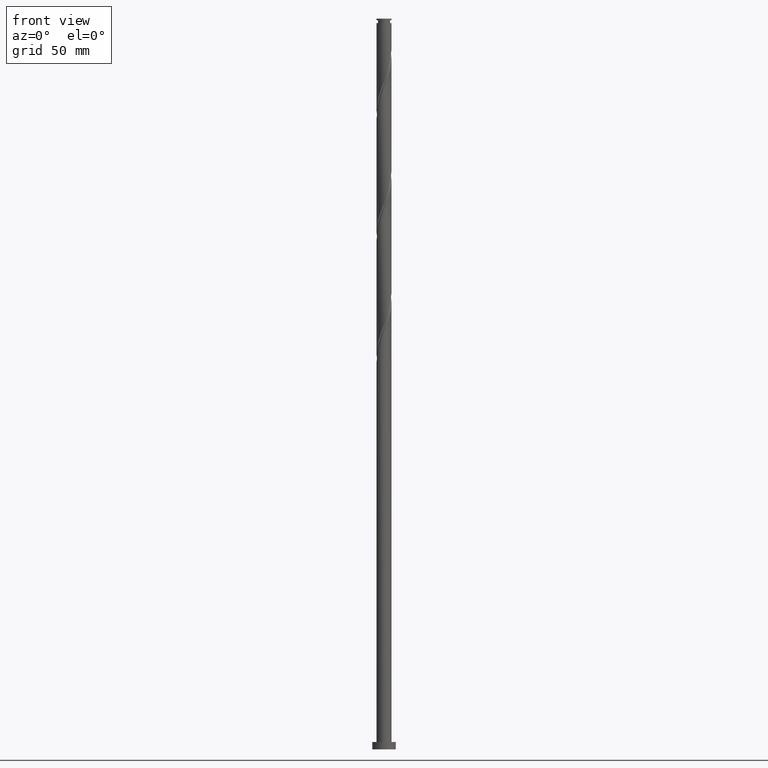
[diagram: clean part render]
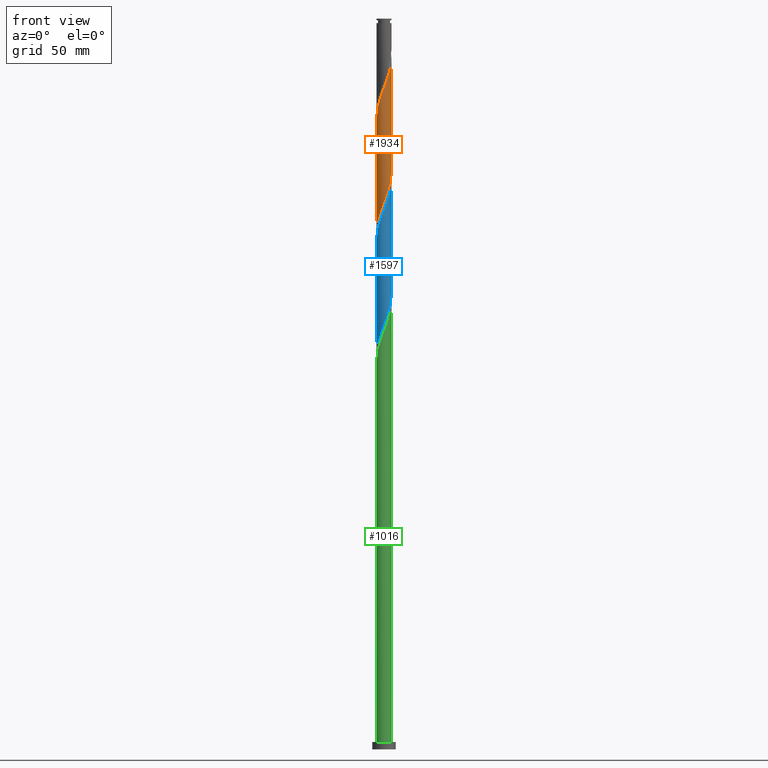
[diagram: same view with three faces highlighted in distinct colors, each labeled with its STEP entity id]
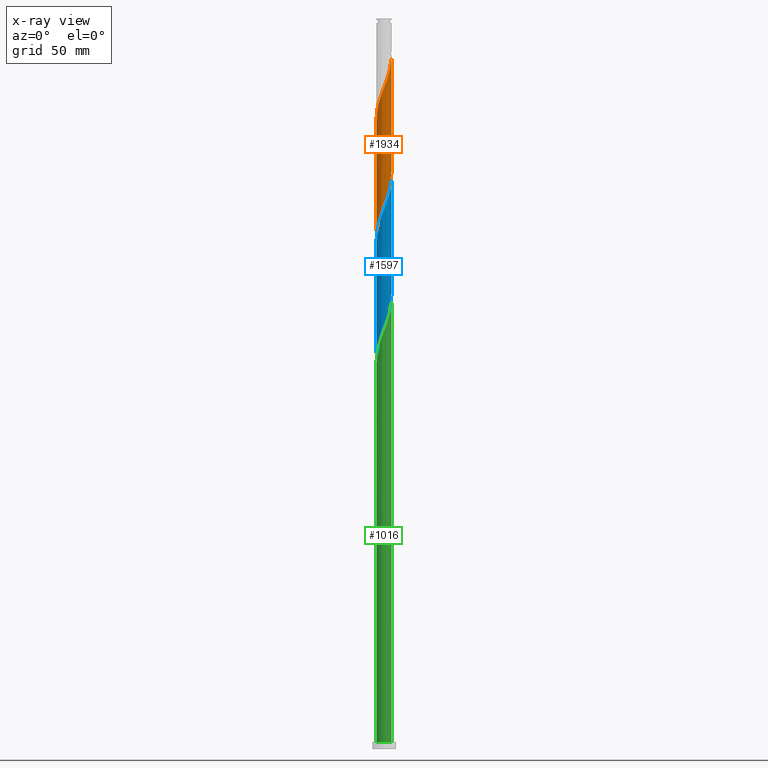
[diagram: x-ray of the same camera — body ghosted, the three highlighted faces saturated]
A machine part, front view with three faces highlighted in distinct colors.
The next image is the same camera in x-ray (body ghosted, the three faces saturated) — at least one of them is partly hidden behind the body in this view.
Their STEP definitions:

[orange] entity #1934 — the highlighted cylindrical surface (edge-blend (fillet) strip) has radius 5.1 mm, axis along (-0, -0, -1).
#30 = CARTESIAN_POINT ( 'NONE',  ( 3.235247230719697331, -3.974353636958184222, 383.6233842820044515 ) ) ;
#49 = VECTOR ( 'NONE', #1482, 1000.000000000000000 ) ;
#53 = CARTESIAN_POINT ( 'NONE',  ( -3.620587879580458246, -3.591844011957518124, 364.0921342820045083 ) ) ;
#57 = CARTESIAN_POINT ( 'NONE',  ( 4.998000000000001108, -1.014887185848757811, 392.7379676153379364 ) ) ;
#58 = VERTEX_POINT ( 'NONE', #354 ) ;
#65 = CARTESIAN_POINT ( 'NONE',  ( -5.005930415235359199, -0.9750182961470735821, 356.2796342820045083 ) ) ;
#82 = CARTESIAN_POINT ( 'NONE',  ( 0.000000000000000000, 0.000000000000000000, 500.0000000000000000 ) ) ;
#84 = VECTOR ( 'NONE', #88, 1000.000000000000000 ) ;
#88 = DIRECTION ( 'NONE',  ( -0.000000000000000000, -0.000000000000000000, -1.000000000000000000 ) ) ;
#106 = CYLINDRICAL_SURFACE ( 'NONE', #1374, 5.100000000000001421 ) ;
#108 = EDGE_CURVE ( 'NONE', #1903, #2017, #1609, .T. ) ;
#118 = DIRECTION ( 'NONE',  ( -1.000000000000000000, 0.000000000000000000, 0.000000000000000000 ) ) ;
#158 = CARTESIAN_POINT ( 'NONE',  ( 4.509897990299585047, -2.433748465345991541, 388.8317176153378227 ) ) ;
#165 = CARTESIAN_POINT ( 'NONE',  ( 3.266822122202741152, -3.948440793195344689, 461.7483842820044515 ) ) ;
#174 = CARTESIAN_POINT ( 'NONE',  ( -5.100000000000001421, 0.000000000000000000, 500.0000000000000000 ) ) ;
#175 = CARTESIAN_POINT ( 'NONE',  ( 2.433748465345992873, -4.509897990299594817, 459.1442176153377659 ) ) ;
#189 = CARTESIAN_POINT ( 'NONE',  ( -2.850285293774363460, -4.229169391747460871, 366.6963009486711940 ) ) ;
#211 = CARTESIAN_POINT ( 'NONE',  ( -2.433748465345991541, -4.509897990299585047, 367.9983842820045083 ) ) ;
#220 = CARTESIAN_POINT ( 'NONE',  ( 0.4819771844422291451, -5.101961335521796315, 375.8108842820043947 ) ) ;
#246 = CARTESIAN_POINT ( 'NONE',  ( -4.898042336816559761, -1.507147219827865925, 435.7067176153378796 ) ) ;
#268 = CARTESIAN_POINT ( 'NONE',  ( -3.591844011957525229, -3.620587879580463131, 442.2171342820044515 ) ) ;
#290 = CARTESIAN_POINT ( 'NONE',  ( 4.719526232618731498, -1.932892169683488426, 468.2588009486710234 ) ) ;
#301 = CARTESIAN_POINT ( 'NONE',  ( 3.620587879580463131, -3.591844011957526117, 463.0504676153378227 ) ) ;
#303 = EDGE_CURVE ( 'NONE', #1787, #2017, #954, .T. ) ;
#328 = CARTESIAN_POINT ( 'NONE',  ( 3.591844011957518124, -3.620587879580457802, 384.9254676153379364 ) ) ;
#354 = CARTESIAN_POINT ( 'NONE',  ( 5.100000000000011191, 4.827319550253835716E-16, 473.4144373040076061 ) ) ;
#368 = CARTESIAN_POINT ( 'NONE',  ( -1.932892169683487982, -4.719526232618731498, 447.4254676153377659 ) ) ;
#382 = CARTESIAN_POINT ( 'NONE',  ( 2.816486081117375306, -4.251753303623353020, 382.3213009486710234 ) ) ;
#466 = CARTESIAN_POINT ( 'NONE',  ( -5.100000000000001421, 2.809183127157574852E-13, 353.7281645933339291 ) ) ;
#496 = ORIENTED_EDGE ( 'NONE', *, *, #1148, .F. ) ;
#500 = CARTESIAN_POINT ( 'NONE',  ( 2.850285293774367013, -4.229169391747469753, 460.4463009486710803 ) ) ;
#520 = CARTESIAN_POINT ( 'NONE',  ( 1.932892169683482875, -4.719526232618723505, 379.7171342820043947 ) ) ;
#550 = CARTESIAN_POINT ( 'NONE',  ( -3.974353636958182445, -3.235247230719699107, 362.7900509486711940 ) ) ;
#579 = CARTESIAN_POINT ( 'NONE',  ( 1.507147219827865481, -4.898042336816559761, 456.5400509486710803 ) ) ;
#588 = CARTESIAN_POINT ( 'NONE',  ( -5.100000000000010303, -2.355881046919246659E-15, 431.7477706373409774 ) ) ;
#611 = CARTESIAN_POINT ( 'NONE',  ( -3.948440793195344689, -3.266822122202741152, 440.9150509486711940 ) ) ;
#655 = CARTESIAN_POINT ( 'NONE',  ( 5.005930415235366304, -0.9750182961470786891, 470.8629676153377090 ) ) ;
#665 = CARTESIAN_POINT ( 'NONE',  ( 4.909899494948929188, -1.468059407851920239, 469.5608842820044515 ) ) ;
#682 = CARTESIAN_POINT ( 'NONE',  ( 4.703970163558069295, -1.970447842586929843, 390.1338009486712508 ) ) ;
#688 = CARTESIAN_POINT ( 'NONE',  ( -1.970447842586929843, -4.703970163558069295, 369.3004676153378796 ) ) ;
#729 = CARTESIAN_POINT ( 'NONE',  ( -5.097957663183454002, -0.5226271518696490315, 433.1025509486710803 ) ) ;
#740 = CARTESIAN_POINT ( 'NONE',  ( -4.229169391747469753, -2.850285293774367013, 439.6129676153377090 ) ) ;
#786 = CARTESIAN_POINT ( 'NONE',  ( 3.974353636958187330, -3.235247230719706657, 464.3525509486711940 ) ) ;
#854 = CARTESIAN_POINT ( 'NONE',  ( 5.100000000000000533, -0.01016253220872168420, 395.3684777054841106 ) ) ;
#869 = CARTESIAN_POINT ( 'NONE',  ( -4.909899494948922971, -1.468059407851916243, 357.5817176153378796 ) ) ;
#880 = CARTESIAN_POINT ( 'NONE',  ( 5.100000000000002309, 3.671744986100435593E-15, 395.3948312600013537 ) ) ;
#886 = CARTESIAN_POINT ( 'NONE',  ( 0.02032498371370710863, -5.099959499352630488, 452.6338009486711371 ) ) ;
#889 = CARTESIAN_POINT ( 'NONE',  ( 5.100000000000001421, 6.245698675651502811E-16, 500.0000000000000000 ) ) ;
#898 = FACE_OUTER_BOUND ( 'NONE', #1053, .T. ) ;
#920 = CARTESIAN_POINT ( 'NONE',  ( -4.998000000000005549, -1.014887185848757811, 434.4046342820044515 ) ) ;
#954 =( BOUNDED_CURVE ( )  B_SPLINE_CURVE ( 2, ( #880, #854, #1194, #1015, #57, #1655, #682, #158, #1785, #2096, #328, #30, #382, #2003, #520, #1201, #1486, #220, #1992, #1974, #1840, #1352, #688, #211, #189, #1162, #53, #550, #1831, #1806, #1335, #869, #65, #1175, #466 ),
 .UNSPECIFIED., .F., .T. ) 
 B_SPLINE_CURVE_WITH_KNOTS ( ( 3, 2, 2, 2, 2, 2, 2, 2, 2, 2, 2, 2, 2, 2, 2, 2, 2, 3 ),
 ( 0.5545286902180870392, 0.5546875000000000000, 0.5625000000000000000, 0.5703125000000000000, 0.5781250000000000000, 0.5859375000000000000, 0.5937500000000000000, 0.6015625000000000000, 0.6093750000000000000, 0.6171875000000000000, 0.6250000000000000000, 0.6328125000000000000, 0.6406250000000000000, 0.6484375000000000000, 0.6562500000000000000, 0.6640625000000000000, 0.6718750000000000000, 0.6795286902180894817 ),
 .UNSPECIFIED. ) 
 CURVE ( )  GEOMETRIC_REPRESENTATION_ITEM ( )  RATIONAL_B_SPLINE_CURVE ( ( 0.9089165573359498929, 0.9090019243628547629, 0.9090909090909466972, 0.9047133878838528043, 0.9090909090909466972, 0.9047133878838528043, 0.9090909090909466972, 0.9047133878838528043, 0.9090909090909466972, 0.9047133878838528043, 0.9090909090909466972, 0.9047133878838528043, 0.9090909090909466972, 0.9047133878838528043, 0.9090909090909466972, 0.9047133878838528043, 0.9090909090909466972, 0.9047133878838528043, 0.9090909090909466972, 0.9047133878838528043, 0.9090909090909466972, 0.9047133878838528043, 0.9090909090909466972, 0.9047133878838528043, 0.9090909090909466972, 0.9047133878838528043, 0.9090909090909466972, 0.9047133878838528043, 0.9090909090909466972, 0.9047133878838528043, 0.9090909090909466972, 0.9047133878838528043, 0.9090909090909466972, 0.9048023726119432952, 0.9089165573359525574 ) ) 
 REPRESENTATION_ITEM ( '' )  );
#977 = CARTESIAN_POINT ( 'NONE',  ( 4.529152970288528479, -2.397724931515060387, 466.9567176153378227 ) ) ;
#1010 = CARTESIAN_POINT ( 'NONE',  ( -0.9750182961470764686, -5.005930415235368081, 450.0296342820044515 ) ) ;
#1015 = CARTESIAN_POINT ( 'NONE',  ( 5.097957663183446897, -0.5226271518696526952, 394.0400509486711371 ) ) ;
#1019 = CARTESIAN_POINT ( 'NONE',  ( -5.100000000000001421, 2.809183127157574852E-13, 353.7281645933339291 ) ) ;
#1053 = EDGE_LOOP ( 'NONE', ( #496, #1606, #1796, #1988 ) ) ;
#1079 =( BOUNDED_CURVE ( )  B_SPLINE_CURVE ( 2, ( #1536, #1183, #1708, #729, #920, #246, #2054, #2022, #740, #611, #268, #1546, #1556, #1257, #368, #1648, #1010, #1823, #886, #1526, #1380, #579, #1114, #175, #500, #165, #301, #786, #1424, #977, #290, #665, #655, #1587, #1768 ),
 .UNSPECIFIED., .F., .T. ) 
 B_SPLINE_CURVE_WITH_KNOTS ( ( 3, 2, 2, 2, 2, 2, 2, 2, 2, 2, 2, 2, 2, 2, 2, 2, 2, 3 ),
 ( 0.5545286902180874833, 0.5546875000000000000, 0.5625000000000000000, 0.5703125000000000000, 0.5781250000000000000, 0.5859375000000000000, 0.5937500000000000000, 0.6015625000000000000, 0.6093750000000000000, 0.6171875000000000000, 0.6250000000000000000, 0.6328125000000000000, 0.6406250000000000000, 0.6484375000000000000, 0.6562500000000000000, 0.6640625000000000000, 0.6718750000000000000, 0.6795286902180870392 ),
 .UNSPECIFIED. ) 
 CURVE ( )  GEOMETRIC_REPRESENTATION_ITEM ( )  RATIONAL_B_SPLINE_CURVE ( ( 0.9089165573359568873, 0.9090019243628615353, 0.9090909090909532475, 0.9047133878838593546, 0.9090909090909532475, 0.9047133878838593546, 0.9090909090909532475, 0.9047133878838593546, 0.9090909090909532475, 0.9047133878838593546, 0.9090909090909532475, 0.9047133878838593546, 0.9090909090909532475, 0.9047133878838593546, 0.9090909090909532475, 0.9047133878838593546, 0.9090909090909532475, 0.9047133878838593546, 0.9090909090909532475, 0.9047133878838593546, 0.9090909090909532475, 0.9047133878838593546, 0.9090909090909532475, 0.9047133878838593546, 0.9090909090909532475, 0.9047133878838593546, 0.9090909090909532475, 0.9047133878838593546, 0.9090909090909532475, 0.9047133878838593546, 0.9090909090909532475, 0.9047133878838593546, 0.9090909090909532475, 0.9048023726119512888, 0.9089165573359564432 ) ) 
 REPRESENTATION_ITEM ( '' )  );
#1114 = CARTESIAN_POINT ( 'NONE',  ( 1.970447842586929843, -4.703970163558077289, 457.8421342820044515 ) ) ;
#1148 = EDGE_CURVE ( 'NONE', #58, #1787, #1825, .T. ) ;
#1162 = CARTESIAN_POINT ( 'NONE',  ( -3.266822122202736267, -3.948440793195336695, 365.3942176153378227 ) ) ;
#1175 = CARTESIAN_POINT ( 'NONE',  ( -5.100000000000028955, -0.4920470561376587559, 355.0041446987502241 ) ) ;
#1183 = CARTESIAN_POINT ( 'NONE',  ( -5.100000000000009415, -0.01016253220874907028, 431.7741241918583910 ) ) ;
#1194 = CARTESIAN_POINT ( 'NONE',  ( 5.099959499352621606, -0.02032498371370958928, 395.3421342820044515 ) ) ;
#1201 = CARTESIAN_POINT ( 'NONE',  ( 1.468059407851916243, -4.909899494948922971, 378.4150509486712508 ) ) ;
#1257 = CARTESIAN_POINT ( 'NONE',  ( -2.397724931515057278, -4.529152970288531144, 446.1233842820045083 ) ) ;
#1306 = CARTESIAN_POINT ( 'NONE',  ( 5.100000000000002309, 3.671744986100435593E-15, 395.3948312600013537 ) ) ;
#1335 = CARTESIAN_POINT ( 'NONE',  ( -4.719526232618722617, -1.932892169683482875, 358.8838009486711940 ) ) ;
#1352 = CARTESIAN_POINT ( 'NONE',  ( -1.507147219827864593, -4.898042336816549991, 370.6025509486711940 ) ) ;
#1374 = AXIS2_PLACEMENT_3D ( 'NONE', #82, #1858, #118 ) ;
#1380 = CARTESIAN_POINT ( 'NONE',  ( 1.014887185848757367, -4.998000000000005549, 455.2379676153377659 ) ) ;
#1424 = CARTESIAN_POINT ( 'NONE',  ( 4.251753303623358349, -2.816486081117381968, 465.6546342820044515 ) ) ;
#1482 = DIRECTION ( 'NONE',  ( -0.000000000000000000, -0.000000000000000000, -1.000000000000000000 ) ) ;
#1486 = CARTESIAN_POINT ( 'NONE',  ( 0.9750182961470730270, -5.005930415235359199, 377.1129676153377659 ) ) ;
#1526 = CARTESIAN_POINT ( 'NONE',  ( 0.5226271518696488094, -5.097957663183454891, 453.9358842820044515 ) ) ;
#1536 = CARTESIAN_POINT ( 'NONE',  ( -5.100000000000010303, -2.355881046919246659E-15, 431.7477706373409774 ) ) ;
#1546 = CARTESIAN_POINT ( 'NONE',  ( -3.235247230719706213, -3.974353636958188218, 443.5192176153378227 ) ) ;
#1556 = CARTESIAN_POINT ( 'NONE',  ( -2.816486081117381524, -4.251753303623358349, 444.8213009486711371 ) ) ;
#1587 = CARTESIAN_POINT ( 'NONE',  ( 5.100000000000005862, -0.4920470561378168517, 472.1384571985915386 ) ) ;
#1606 = ORIENTED_EDGE ( 'NONE', *, *, #2056, .F. ) ;
#1609 = LINE ( 'NONE', #174, #49 ) ;
#1648 = CARTESIAN_POINT ( 'NONE',  ( -1.468059407851920239, -4.909899494948929188, 448.7275509486711940 ) ) ;
#1655 = CARTESIAN_POINT ( 'NONE',  ( 4.898042336816551767, -1.507147219827862816, 391.4358842820045083 ) ) ;
#1708 = CARTESIAN_POINT ( 'NONE',  ( -5.099959499352629599, -0.02032498371370859702, 431.8004676153378227 ) ) ;
#1768 = CARTESIAN_POINT ( 'NONE',  ( 5.100000000000011191, 4.827319550253835716E-16, 473.4144373040075493 ) ) ;
#1785 = CARTESIAN_POINT ( 'NONE',  ( 4.229169391747459095, -2.850285293774365680, 387.5296342820045652 ) ) ;
#1787 = VERTEX_POINT ( 'NONE', #1306 ) ;
#1796 = ORIENTED_EDGE ( 'NONE', *, *, #108, .T. ) ;
#1806 = CARTESIAN_POINT ( 'NONE',  ( -4.529152970288524926, -2.397724931515051505, 360.1858842820044515 ) ) ;
#1823 = CARTESIAN_POINT ( 'NONE',  ( -0.4819771844422325313, -5.101961335521803420, 451.3317176153377659 ) ) ;
#1825 = LINE ( 'NONE', #889, #84 ) ;
#1831 = CARTESIAN_POINT ( 'NONE',  ( -4.251753303623352132, -2.816486081117375306, 361.4879676153378227 ) ) ;
#1840 = CARTESIAN_POINT ( 'NONE',  ( -1.014887185848757589, -4.998000000000001108, 371.9046342820044515 ) ) ;
#1858 = DIRECTION ( 'NONE',  ( -0.000000000000000000, -0.000000000000000000, -1.000000000000000000 ) ) ;
#1903 = VERTEX_POINT ( 'NONE', #588 ) ;
#1934 = ADVANCED_FACE ( 'NONE', ( #898 ), #106, .T. ) ;
#1974 = CARTESIAN_POINT ( 'NONE',  ( -0.5226271518696501417, -5.097957663183446897, 373.2067176153379364 ) ) ;
#1988 = ORIENTED_EDGE ( 'NONE', *, *, #303, .F. ) ;
#1992 = CARTESIAN_POINT ( 'NONE',  ( -0.02032498371370917295, -5.099959499352621606, 374.5088009486711371 ) ) ;
#2003 = CARTESIAN_POINT ( 'NONE',  ( 2.397724931515051061, -4.529152970288524926, 381.0192176153377659 ) ) ;
#2017 = VERTEX_POINT ( 'NONE', #1019 ) ;
#2022 = CARTESIAN_POINT ( 'NONE',  ( -4.509897990299594817, -2.433748465345993317, 438.3108842820045083 ) ) ;
#2054 = CARTESIAN_POINT ( 'NONE',  ( -4.703970163558077289, -1.970447842586929177, 437.0088009486711371 ) ) ;
#2056 = EDGE_CURVE ( 'NONE', #1903, #58, #1079, .T. ) ;
#2096 = CARTESIAN_POINT ( 'NONE',  ( 3.948440793195336695, -3.266822122202736267, 386.2275509486711371 ) ) ;

[blue] entity #1597 — the highlighted cylindrical surface (edge-blend (fillet) strip) has radius 5.1 mm, axis along (-0, -0, -1).
#12 = LINE ( 'NONE', #1936, #1564 ) ;
#37 = EDGE_CURVE ( 'NONE', #619, #1063, #87, .T. ) ;
#63 = CARTESIAN_POINT ( 'NONE',  ( -5.100000000000008527, -0.01016253220873485595, 348.4407908585247924 ) ) ;
#87 =( BOUNDED_CURVE ( )  B_SPLINE_CURVE ( 2, ( #229, #63, #1466, #345, #1311, #1735, #1777, #1885, #1070, #911, #443, #109, #752, #1610, #613, #2042, #1455, #936, #601, #335, #1247, #1898, #1082, #1259, #1722, #923, #120, #764, #2057, #292, #136, #810, #2102, #1303, #976 ),
 .UNSPECIFIED., .F., .T. ) 
 B_SPLINE_CURVE_WITH_KNOTS ( ( 3, 2, 2, 2, 2, 2, 2, 2, 2, 2, 2, 2, 2, 2, 2, 2, 2, 3 ),
 ( 0.3045286902180872612, 0.3046875000000000000, 0.3125000000000000000, 0.3203125000000000000, 0.3281250000000000000, 0.3359375000000000000, 0.3437500000000000000, 0.3515625000000000000, 0.3593750000000000000, 0.3671875000000000000, 0.3750000000000000000, 0.3828125000000000000, 0.3906250000000000000, 0.3984375000000000000, 0.4062500000000000000, 0.4140625000000000000, 0.4218750000000000000, 0.4295286902180872057 ),
 .UNSPECIFIED. ) 
 CURVE ( )  GEOMETRIC_REPRESENTATION_ITEM ( )  RATIONAL_B_SPLINE_CURVE ( ( 0.9089165573359567762, 0.9090019243628615353, 0.9090909090909532475, 0.9047133878838593546, 0.9090909090909532475, 0.9047133878838593546, 0.9090909090909532475, 0.9047133878838593546, 0.9090909090909532475, 0.9047133878838593546, 0.9090909090909532475, 0.9047133878838593546, 0.9090909090909532475, 0.9047133878838593546, 0.9090909090909532475, 0.9047133878838593546, 0.9090909090909532475, 0.9047133878838593546, 0.9090909090909532475, 0.9047133878838593546, 0.9090909090909532475, 0.9047133878838593546, 0.9090909090909532475, 0.9047133878838593546, 0.9090909090909532475, 0.9047133878838593546, 0.9090909090909532475, 0.9047133878838593546, 0.9090909090909532475, 0.9047133878838593546, 0.9090909090909532475, 0.9047133878838593546, 0.9090909090909532475, 0.9048023726119511778, 0.9089165573359566652 ) ) 
 REPRESENTATION_ITEM ( '' )  );
#109 = CARTESIAN_POINT ( 'NONE',  ( -3.235247230719706213, -3.974353636958188218, 360.1858842820045083 ) ) ;
#120 = CARTESIAN_POINT ( 'NONE',  ( 3.620587879580463131, -3.591844011957526117, 379.7171342820045083 ) ) ;
#127 = CARTESIAN_POINT ( 'NONE',  ( 5.099959499352621606, -0.02032498371370958928, 312.0088009486711940 ) ) ;
#136 = CARTESIAN_POINT ( 'NONE',  ( 4.719526232618731498, -1.932892169683488426, 384.9254676153378796 ) ) ;
#140 = CARTESIAN_POINT ( 'NONE',  ( 5.100000000000002309, 3.671744986100435593E-15, 312.0614979266680393 ) ) ;
#170 = CARTESIAN_POINT ( 'NONE',  ( -1.970447842586929843, -4.703970163558069295, 285.9671342820045083 ) ) ;
#187 = FACE_OUTER_BOUND ( 'NONE', #1013, .T. ) ;
#202 = CARTESIAN_POINT ( 'NONE',  ( -1.014887185848757589, -4.998000000000001108, 288.5713009486711371 ) ) ;
#229 = CARTESIAN_POINT ( 'NONE',  ( -5.100000000000009415, 4.749038692682152907E-15, 348.4144373040076630 ) ) ;
#263 = VERTEX_POINT ( 'NONE', #1683 ) ;
#292 = CARTESIAN_POINT ( 'NONE',  ( 4.529152970288528479, -2.397724931515060387, 383.6233842820043947 ) ) ;
#308 = CARTESIAN_POINT ( 'NONE',  ( 2.816486081117375306, -4.251753303623353020, 298.9879676153378227 ) ) ;
#330 = CARTESIAN_POINT ( 'NONE',  ( -5.099999999999998757, -0.4920470561378135765, 271.6708113654173644 ) ) ;
#335 = CARTESIAN_POINT ( 'NONE',  ( 0.5226271518696488094, -5.097957663183454891, 370.6025509486711371 ) ) ;
#339 = CARTESIAN_POINT ( 'NONE',  ( 0.000000000000000000, 0.000000000000000000, 500.0000000000000000 ) ) ;
#341 = CARTESIAN_POINT ( 'NONE',  ( -4.529152970288524926, -2.397724931515051505, 276.8525509486711371 ) ) ;
#345 = CARTESIAN_POINT ( 'NONE',  ( -5.097957663183454002, -0.5226271518696490315, 349.7692176153378227 ) ) ;
#352 = ORIENTED_EDGE ( 'NONE', *, *, #1048, .F. ) ;
#357 =( BOUNDED_CURVE ( )  B_SPLINE_CURVE ( 2, ( #140, #1889, #127, #1561, #1418, #781, #1429, #1275, #1916, #475, #1109, #1752, #308, #1947, #817, #1328, #835, #1154, #1964, #506, #202, #1642, #170, #1650, #824, #679, #1130, #1320, #495, #341, #689, #1002, #1619, #330, #1786 ),
 .UNSPECIFIED., .F., .T. ) 
 B_SPLINE_CURVE_WITH_KNOTS ( ( 3, 2, 2, 2, 2, 2, 2, 2, 2, 2, 2, 2, 2, 2, 2, 2, 2, 3 ),
 ( 0.8045286902180871502, 0.8046875000000000000, 0.8125000000000000000, 0.8203125000000000000, 0.8281250000000000000, 0.8359375000000000000, 0.8437500000000000000, 0.8515625000000000000, 0.8593750000000000000, 0.8671875000000000000, 0.8750000000000000000, 0.8828125000000000000, 0.8906250000000000000, 0.8984375000000000000, 0.9062500000000000000, 0.9140625000000000000, 0.9218750000000000000, 0.9295286902180870392 ),
 .UNSPECIFIED. ) 
 CURVE ( )  GEOMETRIC_REPRESENTATION_ITEM ( )  RATIONAL_B_SPLINE_CURVE ( ( 0.9089165573359498929, 0.9090019243628547629, 0.9090909090909466972, 0.9047133878838528043, 0.9090909090909466972, 0.9047133878838528043, 0.9090909090909466972, 0.9047133878838528043, 0.9090909090909466972, 0.9047133878838528043, 0.9090909090909466972, 0.9047133878838528043, 0.9090909090909466972, 0.9047133878838528043, 0.9090909090909466972, 0.9047133878838528043, 0.9090909090909466972, 0.9047133878838528043, 0.9090909090909466972, 0.9047133878838528043, 0.9090909090909466972, 0.9047133878838528043, 0.9090909090909466972, 0.9047133878838528043, 0.9090909090909466972, 0.9047133878838528043, 0.9090909090909466972, 0.9047133878838528043, 0.9090909090909466972, 0.9047133878838528043, 0.9090909090909466972, 0.9047133878838528043, 0.9090909090909466972, 0.9048023726119447385, 0.9089165573359498929 ) ) 
 REPRESENTATION_ITEM ( '' )  );
#443 = CARTESIAN_POINT ( 'NONE',  ( -3.591844011957525229, -3.620587879580463131, 358.8838009486711940 ) ) ;
#448 = ORIENTED_EDGE ( 'NONE', *, *, #37, .F. ) ;
#475 = CARTESIAN_POINT ( 'NONE',  ( 3.948440793195336695, -3.266822122202736267, 302.8942176153379364 ) ) ;
#495 = CARTESIAN_POINT ( 'NONE',  ( -4.251753303623352132, -2.816486081117375306, 278.1546342820046220 ) ) ;
#506 = CARTESIAN_POINT ( 'NONE',  ( -0.5226271518696501417, -5.097957663183446897, 289.8733842820043947 ) ) ;
#518 = CYLINDRICAL_SURFACE ( 'NONE', #1871, 5.100000000000001421 ) ;
#555 = EDGE_CURVE ( 'NONE', #619, #1419, #12, .T. ) ;
#601 = CARTESIAN_POINT ( 'NONE',  ( 0.02032498371370710863, -5.099959499352630488, 369.3004676153378796 ) ) ;
#613 = CARTESIAN_POINT ( 'NONE',  ( -1.932892169683487982, -4.719526232618731498, 364.0921342820045083 ) ) ;
#619 = VERTEX_POINT ( 'NONE', #1926 ) ;
#660 = CARTESIAN_POINT ( 'NONE',  ( 5.100000000000001421, 6.245698675651502811E-16, 500.0000000000000000 ) ) ;
#679 = CARTESIAN_POINT ( 'NONE',  ( -3.266822122202736267, -3.948440793195336695, 282.0608842820043947 ) ) ;
#689 = CARTESIAN_POINT ( 'NONE',  ( -4.719526232618722617, -1.932892169683482875, 275.5504676153379364 ) ) ;
#752 = CARTESIAN_POINT ( 'NONE',  ( -2.816486081117381524, -4.251753303623358349, 361.4879676153378796 ) ) ;
#764 = CARTESIAN_POINT ( 'NONE',  ( 3.974353636958187330, -3.235247230719706657, 381.0192176153377659 ) ) ;
#781 = CARTESIAN_POINT ( 'NONE',  ( 4.898042336816551767, -1.507147219827862816, 308.1025509486713077 ) ) ;
#810 = CARTESIAN_POINT ( 'NONE',  ( 4.909899494948929188, -1.468059407851920239, 386.2275509486711371 ) ) ;
#817 = CARTESIAN_POINT ( 'NONE',  ( 1.932892169683482875, -4.719526232618723505, 296.3838009486712508 ) ) ;
#823 = DIRECTION ( 'NONE',  ( -0.000000000000000000, -0.000000000000000000, -1.000000000000000000 ) ) ;
#824 = CARTESIAN_POINT ( 'NONE',  ( -2.850285293774363460, -4.229169391747460871, 283.3629676153379364 ) ) ;
#831 = DIRECTION ( 'NONE',  ( -1.000000000000000000, 0.000000000000000000, 0.000000000000000000 ) ) ;
#835 = CARTESIAN_POINT ( 'NONE',  ( 0.9750182961470730270, -5.005930415235359199, 293.7796342820045652 ) ) ;
#844 = DIRECTION ( 'NONE',  ( -0.000000000000000000, -0.000000000000000000, -1.000000000000000000 ) ) ;
#911 = CARTESIAN_POINT ( 'NONE',  ( -3.948440793195344689, -3.266822122202741152, 357.5817176153378796 ) ) ;
#923 = CARTESIAN_POINT ( 'NONE',  ( 3.266822122202741152, -3.948440793195344689, 378.4150509486711940 ) ) ;
#936 = CARTESIAN_POINT ( 'NONE',  ( -0.4819771844422325313, -5.101961335521803420, 367.9983842820045083 ) ) ;
#976 = CARTESIAN_POINT ( 'NONE',  ( 5.100000000000010303, -6.620323954633833192E-15, 390.0811039706741212 ) ) ;
#1002 = CARTESIAN_POINT ( 'NONE',  ( -4.909899494948922971, -1.468059407851916243, 274.2483842820043947 ) ) ;
#1005 = ORIENTED_EDGE ( 'NONE', *, *, #1046, .F. ) ;
#1013 = EDGE_LOOP ( 'NONE', ( #352, #448, #1704, #1005 ) ) ;
#1046 = EDGE_CURVE ( 'NONE', #263, #1419, #357, .T. ) ;
#1048 = EDGE_CURVE ( 'NONE', #1063, #263, #1336, .T. ) ;
#1063 = VERTEX_POINT ( 'NONE', #1630 ) ;
#1070 = CARTESIAN_POINT ( 'NONE',  ( -4.229169391747469753, -2.850285293774367013, 356.2796342820044515 ) ) ;
#1082 = CARTESIAN_POINT ( 'NONE',  ( 1.970447842586929843, -4.703970163558077289, 374.5088009486711371 ) ) ;
#1107 = CARTESIAN_POINT ( 'NONE',  ( -5.100000000000002309, -3.287796018010745455E-15, 270.3948312600012969 ) ) ;
#1109 = CARTESIAN_POINT ( 'NONE',  ( 3.591844011957518124, -3.620587879580457802, 301.5921342820044515 ) ) ;
#1130 = CARTESIAN_POINT ( 'NONE',  ( -3.620587879580458246, -3.591844011957518124, 280.7588009486712508 ) ) ;
#1154 = CARTESIAN_POINT ( 'NONE',  ( 0.4819771844422291451, -5.101961335521796315, 292.4775509486712508 ) ) ;
#1247 = CARTESIAN_POINT ( 'NONE',  ( 1.014887185848757367, -4.998000000000005549, 371.9046342820045083 ) ) ;
#1259 = CARTESIAN_POINT ( 'NONE',  ( 2.433748465345992873, -4.509897990299594817, 375.8108842820045083 ) ) ;
#1275 = CARTESIAN_POINT ( 'NONE',  ( 4.509897990299585047, -2.433748465345991541, 305.4983842820043947 ) ) ;
#1303 = CARTESIAN_POINT ( 'NONE',  ( 5.100000000000008527, -0.4920470561378063046, 388.8051238652582811 ) ) ;
#1311 = CARTESIAN_POINT ( 'NONE',  ( -4.998000000000005549, -1.014887185848757811, 351.0713009486712508 ) ) ;
#1320 = CARTESIAN_POINT ( 'NONE',  ( -3.974353636958182445, -3.235247230719699107, 279.4567176153378227 ) ) ;
#1328 = CARTESIAN_POINT ( 'NONE',  ( 1.468059407851916243, -4.909899494948922971, 295.0817176153378227 ) ) ;
#1336 = LINE ( 'NONE', #660, #1599 ) ;
#1418 = CARTESIAN_POINT ( 'NONE',  ( 4.998000000000001108, -1.014887185848757811, 309.4046342820044515 ) ) ;
#1419 = VERTEX_POINT ( 'NONE', #1107 ) ;
#1429 = CARTESIAN_POINT ( 'NONE',  ( 4.703970163558069295, -1.970447842586929843, 306.8004676153378227 ) ) ;
#1447 = DIRECTION ( 'NONE',  ( -0.000000000000000000, -0.000000000000000000, -1.000000000000000000 ) ) ;
#1455 = CARTESIAN_POINT ( 'NONE',  ( -0.9750182961470764686, -5.005930415235368081, 366.6963009486711940 ) ) ;
#1466 = CARTESIAN_POINT ( 'NONE',  ( -5.099959499352629599, -0.02032498371370859702, 348.4671342820044515 ) ) ;
#1561 = CARTESIAN_POINT ( 'NONE',  ( 5.097957663183446897, -0.5226271518696526952, 310.7067176153378796 ) ) ;
#1564 = VECTOR ( 'NONE', #823, 1000.000000000000000 ) ;
#1597 = ADVANCED_FACE ( 'NONE', ( #187 ), #518, .T. ) ;
#1599 = VECTOR ( 'NONE', #844, 1000.000000000000000 ) ;
#1610 = CARTESIAN_POINT ( 'NONE',  ( -2.397724931515057278, -4.529152970288531144, 362.7900509486711940 ) ) ;
#1619 = CARTESIAN_POINT ( 'NONE',  ( -5.005930415235359199, -0.9750182961470735821, 272.9463009486711371 ) ) ;
#1630 = CARTESIAN_POINT ( 'NONE',  ( 5.100000000000010303, -6.620323954633833192E-15, 390.0811039706741781 ) ) ;
#1642 = CARTESIAN_POINT ( 'NONE',  ( -1.507147219827864593, -4.898042336816549991, 287.2692176153378227 ) ) ;
#1650 = CARTESIAN_POINT ( 'NONE',  ( -2.433748465345991541, -4.509897990299585047, 284.6650509486710803 ) ) ;
#1683 = CARTESIAN_POINT ( 'NONE',  ( 5.100000000000002309, 3.671744986100435593E-15, 312.0614979266680393 ) ) ;
#1704 = ORIENTED_EDGE ( 'NONE', *, *, #555, .T. ) ;
#1722 = CARTESIAN_POINT ( 'NONE',  ( 2.850285293774367013, -4.229169391747469753, 377.1129676153378227 ) ) ;
#1735 = CARTESIAN_POINT ( 'NONE',  ( -4.898042336816559761, -1.507147219827865925, 352.3733842820045083 ) ) ;
#1752 = CARTESIAN_POINT ( 'NONE',  ( 3.235247230719697331, -3.974353636958184222, 300.2900509486712508 ) ) ;
#1777 = CARTESIAN_POINT ( 'NONE',  ( -4.703970163558077289, -1.970447842586929177, 353.6754676153378796 ) ) ;
#1786 = CARTESIAN_POINT ( 'NONE',  ( -5.100000000000002309, -3.287796018010745455E-15, 270.3948312600012969 ) ) ;
#1871 = AXIS2_PLACEMENT_3D ( 'NONE', #339, #1447, #831 ) ;
#1885 = CARTESIAN_POINT ( 'NONE',  ( -4.509897990299594817, -2.433748465345993317, 354.9775509486711371 ) ) ;
#1889 = CARTESIAN_POINT ( 'NONE',  ( 5.100000000000000533, -0.01016253220872878962, 312.0351443721507962 ) ) ;
#1898 = CARTESIAN_POINT ( 'NONE',  ( 1.507147219827865481, -4.898042336816559761, 373.2067176153379364 ) ) ;
#1916 = CARTESIAN_POINT ( 'NONE',  ( 4.229169391747459095, -2.850285293774365680, 304.1963009486711940 ) ) ;
#1926 = CARTESIAN_POINT ( 'NONE',  ( -5.100000000000009415, 4.749038692682152907E-15, 348.4144373040076061 ) ) ;
#1936 = CARTESIAN_POINT ( 'NONE',  ( -5.100000000000001421, 0.000000000000000000, 500.0000000000000000 ) ) ;
#1947 = CARTESIAN_POINT ( 'NONE',  ( 2.397724931515051061, -4.529152970288524926, 297.6858842820045083 ) ) ;
#1964 = CARTESIAN_POINT ( 'NONE',  ( -0.02032498371370917295, -5.099959499352621606, 291.1754676153377659 ) ) ;
#2042 = CARTESIAN_POINT ( 'NONE',  ( -1.468059407851920239, -4.909899494948929188, 365.3942176153378227 ) ) ;
#2057 = CARTESIAN_POINT ( 'NONE',  ( 4.251753303623358349, -2.816486081117381968, 382.3213009486711940 ) ) ;
#2102 = CARTESIAN_POINT ( 'NONE',  ( 5.005930415235366304, -0.9750182961470786891, 387.5296342820044515 ) ) ;

[green] entity #1016 — the highlighted cylindrical surface (edge-blend (fillet) strip) has radius 5.1 mm, axis along (-0, -0, -1).
#43 = CARTESIAN_POINT ( 'NONE',  ( -4.898042336816559761, -1.507147219827865925, 269.0400509486711371 ) ) ;
#66 = CARTESIAN_POINT ( 'NONE',  ( 4.909899494948929188, -1.468059407851920239, 302.8942176153378796 ) ) ;
#72 = EDGE_CURVE ( 'NONE', #1852, #1430, #122, .T. ) ;
#104 = CARTESIAN_POINT ( 'NONE',  ( 5.100000000000010303, -6.620323954633833192E-15, 306.7477706373410342 ) ) ;
#122 = CIRCLE ( 'NONE', #1173, 5.100000000000001421 ) ;
#132 = CARTESIAN_POINT ( 'NONE',  ( -5.100000000000001421, 0.000000000000000000, 500.0000000000000000 ) ) ;
#208 = ORIENTED_EDGE ( 'NONE', *, *, #265, .F. ) ;
#221 = CARTESIAN_POINT ( 'NONE',  ( -2.816486081117381524, -4.251753303623358349, 278.1546342820045083 ) ) ;
#231 = CARTESIAN_POINT ( 'NONE',  ( -2.397724931515057278, -4.529152970288531144, 279.4567176153378227 ) ) ;
#241 = CARTESIAN_POINT ( 'NONE',  ( -3.948440793195344689, -3.266822122202741152, 274.2483842820043947 ) ) ;
#249 = CARTESIAN_POINT ( 'NONE',  ( -4.509897990299594817, -2.433748465345993317, 271.6442176153378227 ) ) ;
#265 = EDGE_CURVE ( 'NONE', #384, #1430, #1978, .T. ) ;
#273 = CARTESIAN_POINT ( 'NONE',  ( 0.000000000000000000, 0.000000000000000000, 500.0000000000000000 ) ) ;
#366 = EDGE_CURVE ( 'NONE', #651, #1852, #906, .T. ) ;
#383 = CARTESIAN_POINT ( 'NONE',  ( -4.229169391747469753, -2.850285293774367013, 272.9463009486710803 ) ) ;
#384 = VERTEX_POINT ( 'NONE', #104 ) ;
#400 = CARTESIAN_POINT ( 'NONE',  ( 4.251753303623358349, -2.816486081117381968, 298.9879676153378796 ) ) ;
#411 = CARTESIAN_POINT ( 'NONE',  ( -4.703970163558077289, -1.970447842586929177, 270.3421342820044515 ) ) ;
#436 = CYLINDRICAL_SURFACE ( 'NONE', #600, 5.100000000000001421 ) ;
#489 = DIRECTION ( 'NONE',  ( 1.000000000000000000, 0.000000000000000000, 0.000000000000000000 ) ) ;
#533 = CARTESIAN_POINT ( 'NONE',  ( 5.100000000000001421, 6.245698675651502811E-16, 500.0000000000000000 ) ) ;
#541 = CARTESIAN_POINT ( 'NONE',  ( 4.529152970288528479, -2.397724931515060387, 300.2900509486710803 ) ) ;
#545 = ORIENTED_EDGE ( 'NONE', *, *, #72, .T. ) ;
#552 = CARTESIAN_POINT ( 'NONE',  ( -4.998000000000005549, -1.014887185848757811, 267.7379676153378227 ) ) ;
#561 = CARTESIAN_POINT ( 'NONE',  ( -3.591844011957525229, -3.620587879580463131, 275.5504676153378227 ) ) ;
#582 = CARTESIAN_POINT ( 'NONE',  ( 5.005930415235366304, -0.9750182961470786891, 304.1963009486712508 ) ) ;
#600 = AXIS2_PLACEMENT_3D ( 'NONE', #273, #1405, #606 ) ;
#606 = DIRECTION ( 'NONE',  ( -1.000000000000000000, 0.000000000000000000, 0.000000000000000000 ) ) ;
#634 = VECTOR ( 'NONE', #1820, 1000.000000000000000 ) ;
#651 = VERTEX_POINT ( 'NONE', #1297 ) ;
#698 = CARTESIAN_POINT ( 'NONE',  ( 3.266822122202741152, -3.948440793195344689, 295.0817176153378796 ) ) ;
#713 = CARTESIAN_POINT ( 'NONE',  ( 5.100000000000008527, -0.4920470561378081920, 305.4717905319250235 ) ) ;
#732 = CARTESIAN_POINT ( 'NONE',  ( 5.100000000000010303, -6.620323954633833192E-15, 306.7477706373410342 ) ) ;
#860 = CARTESIAN_POINT ( 'NONE',  ( -0.9750182961470764686, -5.005930415235368081, 283.3629676153377659 ) ) ;
#901 = CARTESIAN_POINT ( 'NONE',  ( -1.468059407851920239, -4.909899494948929188, 282.0608842820045083 ) ) ;
#906 = LINE ( 'NONE', #132, #1444 ) ;
#928 = ORIENTED_EDGE ( 'NONE', *, *, #1118, .F. ) ;
#993 = DIRECTION ( 'NONE',  ( 0.000000000000000000, 0.000000000000000000, 1.000000000000000000 ) ) ;
#1016 = ADVANCED_FACE ( 'NONE', ( #1713 ), #436, .T. ) ;
#1021 = CARTESIAN_POINT ( 'NONE',  ( 0.5226271518696488094, -5.097957663183454891, 287.2692176153378227 ) ) ;
#1050 = CARTESIAN_POINT ( 'NONE',  ( 3.974353636958187330, -3.235247230719706657, 297.6858842820044515 ) ) ;
#1061 = CARTESIAN_POINT ( 'NONE',  ( -0.4819771844422325313, -5.101961335521803420, 284.6650509486711940 ) ) ;
#1118 = EDGE_CURVE ( 'NONE', #651, #384, #1569, .T. ) ;
#1173 = AXIS2_PLACEMENT_3D ( 'NONE', #1474, #993, #489 ) ;
#1192 = CARTESIAN_POINT ( 'NONE',  ( 4.719526232618731498, -1.932892169683488426, 301.5921342820045652 ) ) ;
#1215 = CARTESIAN_POINT ( 'NONE',  ( -5.097957663183454002, -0.5226271518696490315, 266.4358842820044515 ) ) ;
#1297 = CARTESIAN_POINT ( 'NONE',  ( -5.100000000000009415, 4.749038692682152907E-15, 265.0811039706742918 ) ) ;
#1329 = EDGE_LOOP ( 'NONE', ( #208, #928, #1574, #545 ) ) ;
#1346 = CARTESIAN_POINT ( 'NONE',  ( -5.099959499352629599, -0.02032498371370859702, 265.1338009486711940 ) ) ;
#1360 = CARTESIAN_POINT ( 'NONE',  ( 3.620587879580463131, -3.591844011957526117, 296.3838009486711940 ) ) ;
#1398 = DIRECTION ( 'NONE',  ( -0.000000000000000000, -0.000000000000000000, -1.000000000000000000 ) ) ;
#1405 = DIRECTION ( 'NONE',  ( -0.000000000000000000, -0.000000000000000000, -1.000000000000000000 ) ) ;
#1430 = VERTEX_POINT ( 'NONE', #1874 ) ;
#1444 = VECTOR ( 'NONE', #1398, 1000.000000000000000 ) ;
#1474 = CARTESIAN_POINT ( 'NONE',  ( 0.000000000000000000, 0.000000000000000000, 5.000000000000000000 ) ) ;
#1479 = CARTESIAN_POINT ( 'NONE',  ( -5.100000000000001421, 0.000000000000000000, 5.000000000000000000 ) ) ;
#1513 = CARTESIAN_POINT ( 'NONE',  ( 2.433748465345992873, -4.509897990299594817, 292.4775509486711940 ) ) ;
#1530 = CARTESIAN_POINT ( 'NONE',  ( 0.02032498371370710863, -5.099959499352630488, 285.9671342820044515 ) ) ;
#1569 =( BOUNDED_CURVE ( )  B_SPLINE_CURVE ( 2, ( #2004, #1671, #1346, #1215, #552, #43, #411, #249, #383, #241, #561, #1985, #221, #231, #1863, #901, #860, #1061, #1530, #1021, #1690, #1850, #1832, #1513, #1701, #698, #1360, #1050, #400, #541, #1192, #66, #582, #713, #732 ),
 .UNSPECIFIED., .F., .T. ) 
 B_SPLINE_CURVE_WITH_KNOTS ( ( 3, 2, 2, 2, 2, 2, 2, 2, 2, 2, 2, 2, 2, 2, 2, 2, 2, 3 ),
 ( 0.05452869021808719185, 0.05468750000000000000, 0.06250000000000000000, 0.07031250000000000000, 0.07812500000000000000, 0.08593750000000000000, 0.09375000000000000000, 0.1015625000000000000, 0.1093750000000000000, 0.1171875000000000000, 0.1250000000000000000, 0.1328125000000000000, 0.1406250000000000000, 0.1484375000000000000, 0.1562500000000000000, 0.1640625000000000000, 0.1718750000000000000, 0.1795286902180871780 ),
 .UNSPECIFIED. ) 
 CURVE ( )  GEOMETRIC_REPRESENTATION_ITEM ( )  RATIONAL_B_SPLINE_CURVE ( ( 0.9089165573359566652, 0.9090019243628614243, 0.9090909090909532475, 0.9047133878838593546, 0.9090909090909532475, 0.9047133878838593546, 0.9090909090909532475, 0.9047133878838593546, 0.9090909090909532475, 0.9047133878838593546, 0.9090909090909532475, 0.9047133878838593546, 0.9090909090909532475, 0.9047133878838593546, 0.9090909090909532475, 0.9047133878838593546, 0.9090909090909532475, 0.9047133878838593546, 0.9090909090909532475, 0.9047133878838593546, 0.9090909090909532475, 0.9047133878838593546, 0.9090909090909532475, 0.9047133878838593546, 0.9090909090909532475, 0.9047133878838593546, 0.9090909090909532475, 0.9047133878838593546, 0.9090909090909532475, 0.9047133878838593546, 0.9090909090909532475, 0.9047133878838593546, 0.9090909090909532475, 0.9048023726119511778, 0.9089165573359565542 ) ) 
 REPRESENTATION_ITEM ( '' )  );
#1574 = ORIENTED_EDGE ( 'NONE', *, *, #366, .T. ) ;
#1671 = CARTESIAN_POINT ( 'NONE',  ( -5.100000000000008527, -0.01016253220873041679, 265.1074575251915917 ) ) ;
#1690 = CARTESIAN_POINT ( 'NONE',  ( 1.014887185848757367, -4.998000000000005549, 288.5713009486712508 ) ) ;
#1701 = CARTESIAN_POINT ( 'NONE',  ( 2.850285293774367013, -4.229169391747469753, 293.7796342820045083 ) ) ;
#1713 = FACE_OUTER_BOUND ( 'NONE', #1329, .T. ) ;
#1820 = DIRECTION ( 'NONE',  ( -0.000000000000000000, -0.000000000000000000, -1.000000000000000000 ) ) ;
#1832 = CARTESIAN_POINT ( 'NONE',  ( 1.970447842586929843, -4.703970163558077289, 291.1754676153378796 ) ) ;
#1850 = CARTESIAN_POINT ( 'NONE',  ( 1.507147219827865481, -4.898042336816559761, 289.8733842820045083 ) ) ;
#1852 = VERTEX_POINT ( 'NONE', #1479 ) ;
#1863 = CARTESIAN_POINT ( 'NONE',  ( -1.932892169683487982, -4.719526232618731498, 280.7588009486710803 ) ) ;
#1874 = CARTESIAN_POINT ( 'NONE',  ( 5.100000000000001421, 6.245698675651502811E-16, 5.000000000000000000 ) ) ;
#1978 = LINE ( 'NONE', #533, #634 ) ;
#1985 = CARTESIAN_POINT ( 'NONE',  ( -3.235247230719706213, -3.974353636958188218, 276.8525509486710803 ) ) ;
#2004 = CARTESIAN_POINT ( 'NONE',  ( -5.100000000000008527, 4.749038692682152907E-15, 265.0811039706742918 ) ) ;